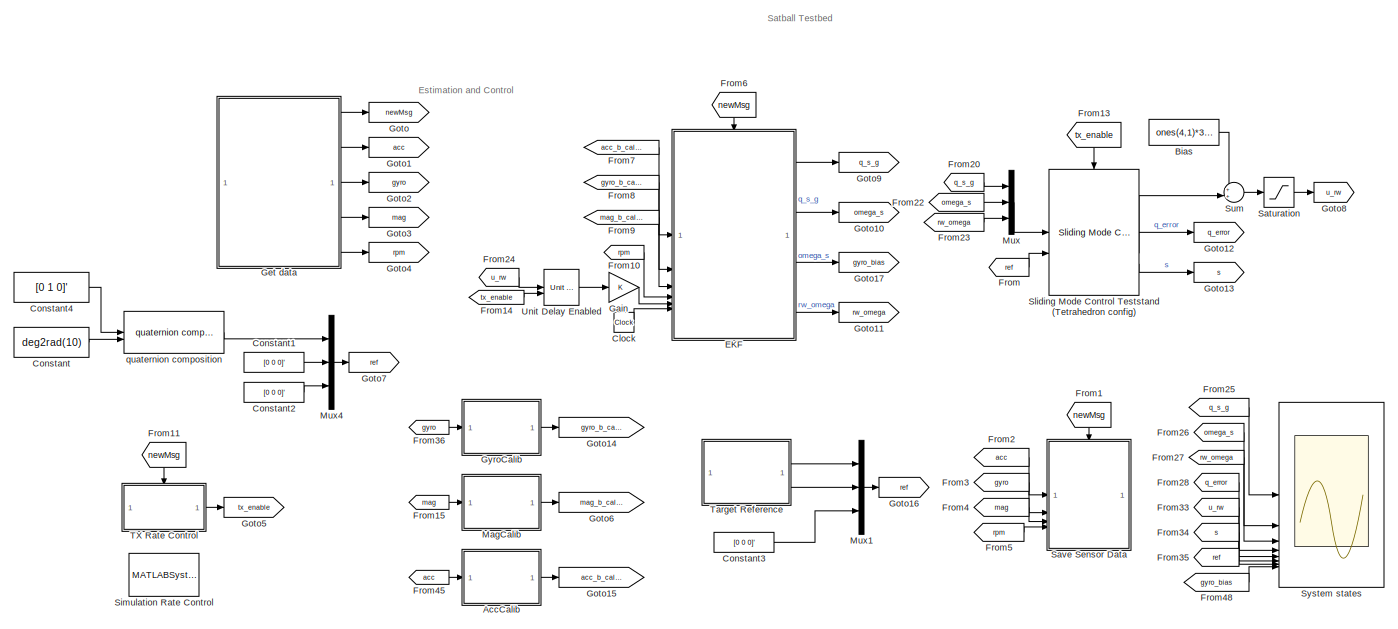
[diagram: root canvas - part 1/2, most of the canvas]
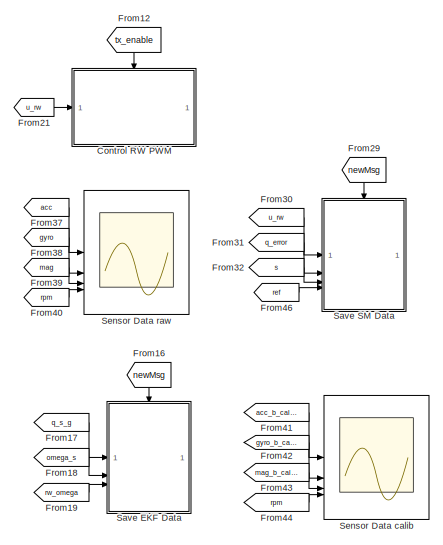
[diagram: root canvas - part 2/2, right side, full height]
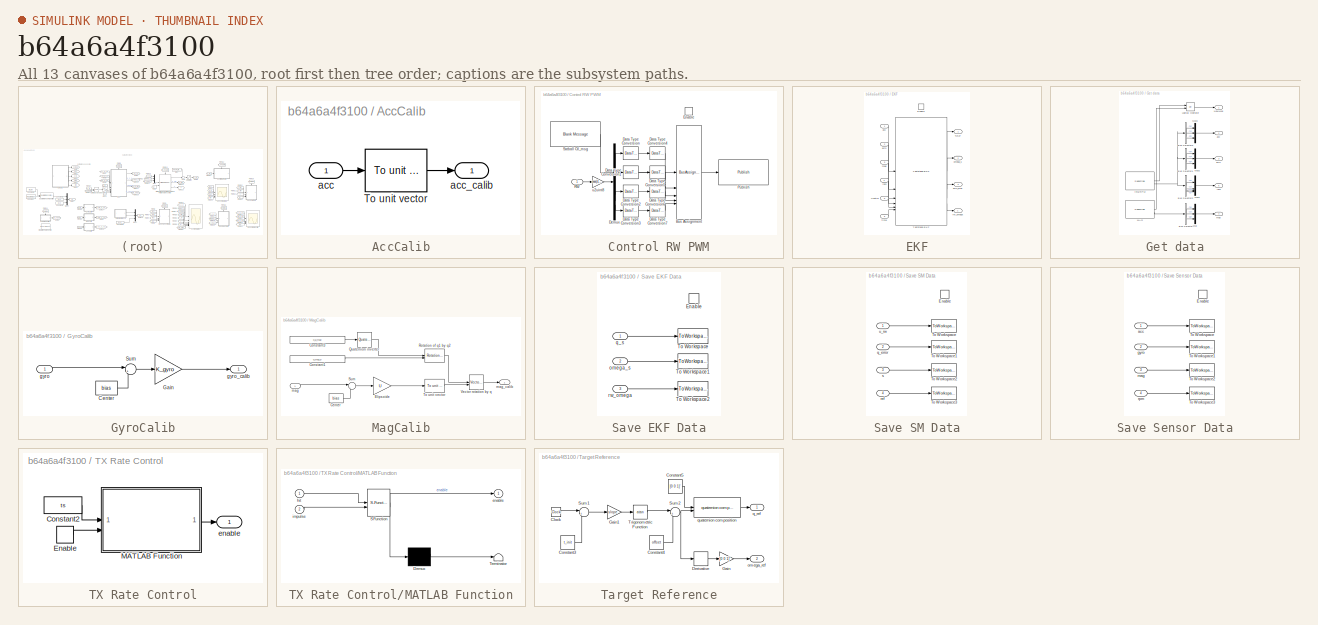
[diagram: thumbnail index - all 13 canvases of the model, root first then tree order]
MODEL slx_b64a6a4f3100
KIND model
CONFIG AbsTol = auto
CONFIG EnableMultiTasking = on
CONFIG FixedStep = 0.1
CONFIG MaxStep = auto
CONFIG MinStep = auto
CONFIG PreLoadFcn = setenv('ROS_MASTER_URI','http://localhost:11311/');\nsetenv('ROS_IP','localhost');\nrosinit('http://localhost:11311/',...\n    'NodeHost','localhost',...\n    'NodeName','/simulink_teststand');
CONFIG RelTol = 1e-3
CONFIG SampleTimeConstraint = Unconstrained
CONFIG SolverName = FixedStepDiscrete
CONFIG StartTime = 0.0
CONFIG StopTime = inf
BLOCK [SubSystem] AccCalib
BLOCK [Reference] AccCalib/To unit vector  REF=aausat3_lib/Math Utilities/Vector operations/To unit vector  (lib defined in mdl_4157f6465749, slx_d9305f96731e)
  SourceBlock = aausat3_lib/Math Utilities/Vector operations/To unit vector
  SourceProductName = AAUSAT3
  SourceType = SubSystem
BLOCK [Inport] AccCalib/acc
BLOCK [Outport] AccCalib/acc_calib
BLOCK [Constant] Bias
  Value = ones(4,1)*3.3/2
BLOCK [Clock] Clock
BLOCK [Constant] Constant
  Value = deg2rad(10)
BLOCK [Constant] Constant1
  Value = [0 0 0]'
BLOCK [Constant] Constant2
  Value = [0 0 0]'
BLOCK [Constant] Constant3
  Commented = on
  Value = [0 0 0]'
BLOCK [Constant] Constant4
  Value = [0 1 0]'
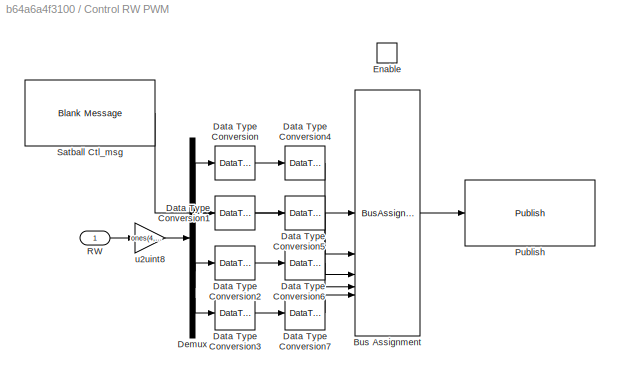
BLOCK [SubSystem] Control RW PWM
BLOCK [BusAssignment] Control RW PWM/Bus Assignment
  AssignedSignals = Quaternion.X,Quaternion.Y,Quaternion.Z,Quaternion.W
BLOCK [DataTypeConversion] Control RW PWM/Data Type Conversion
  OutDataTypeStr = uint8
  RndMeth = Floor
BLOCK [DataTypeConversion] Control RW PWM/Data Type Conversion1
  OutDataTypeStr = uint8
  RndMeth = Floor
BLOCK [DataTypeConversion] Control RW PWM/Data Type Conversion2
  OutDataTypeStr = uint8
  RndMeth = Floor
BLOCK [DataTypeConversion] Control RW PWM/Data Type Conversion3
  OutDataTypeStr = uint8
  RndMeth = Floor
BLOCK [DataTypeConversion] Control RW PWM/Data Type Conversion4
  OutDataTypeStr = double
  RndMeth = Floor
BLOCK [DataTypeConversion] Control RW PWM/Data Type Conversion5
  OutDataTypeStr = double
  RndMeth = Floor
BLOCK [DataTypeConversion] Control RW PWM/Data Type Conversion6
  OutDataTypeStr = double
  RndMeth = Floor
BLOCK [DataTypeConversion] Control RW PWM/Data Type Conversion7
  OutDataTypeStr = double
  RndMeth = Floor
BLOCK [Demux] Control RW PWM/Demux
BLOCK [EnablePort] Control RW PWM/Enable
BLOCK [Reference] Control RW PWM/Publish  REF=robotlib/Publish
  SourceBlock = robotlib/Publish
  SourceType = ROS Publish
BLOCK [Inport] Control RW PWM/RW
BLOCK [Reference] Control RW PWM/Satball Ctl_msg  REF=robotlib/Blank Message
  SourceBlock = robotlib/Blank Message
  SourceType = ROS Blank Message
BLOCK [Gain] Control RW PWM/u2uint8
  Gain = ones(4,1)*255/3.3
BLOCK [SubSystem] EKF
BLOCK [Inport] EKF/Control
  Port = 5
BLOCK [EnablePort] EKF/Enable
BLOCK [Reference] EKF/Teststand EKF  REF=aausat3_lib/ADS/Teststand EKF  (lib defined in mdl_4157f6465749, slx_d9305f96731e)
  SourceBlock = aausat3_lib/ADS/Teststand EKF
  SourceProductName = AAUSAT3
BLOCK [Inport] EKF/acc
BLOCK [Inport] EKF/gyro
  Port = 2
BLOCK [Outport] EKF/gyro_bias
  Port = 3
BLOCK [Inport] EKF/mag
  Port = 3
BLOCK [Outport] EKF/omega_s
  Port = 2
BLOCK [Outport] EKF/q_s_g
BLOCK [Inport] EKF/rpm
  Port = 4
BLOCK [Outport] EKF/rw_omega
  Port = 4
BLOCK [Inport] EKF/time
  Port = 6
BLOCK [From] From
  GotoTag = ref
BLOCK [From] From1
  GotoTag = newMsg
  NameLocation = left
BLOCK [From] From10
  GotoTag = rpm
BLOCK [From] From11
  GotoTag = newMsg
  NameLocation = left
BLOCK [From] From12
  GotoTag = tx_enable
  NameLocation = left
BLOCK [From] From13
  GotoTag = tx_enable
  NameLocation = left
BLOCK [From] From14
  GotoTag = tx_enable
BLOCK [From] From15
  GotoTag = mag
BLOCK [From] From16
  GotoTag = newMsg
  NameLocation = left
BLOCK [From] From17
  GotoTag = q_s_g
BLOCK [From] From18
  GotoTag = omega_s
BLOCK [From] From19
  GotoTag = rw_omega
BLOCK [From] From2
  GotoTag = acc
BLOCK [From] From20
  GotoTag = q_s_g
BLOCK [From] From21
  GotoTag = u_rw
BLOCK [From] From22
  GotoTag = omega_s
BLOCK [From] From23
  GotoTag = rw_omega
BLOCK [From] From24
  GotoTag = u_rw
BLOCK [From] From25
  GotoTag = q_s_g
BLOCK [From] From26
  GotoTag = omega_s
BLOCK [From] From27
  GotoTag = rw_omega
BLOCK [From] From28
  GotoTag = q_error
BLOCK [From] From29
  GotoTag = newMsg
  NameLocation = left
BLOCK [From] From3
  GotoTag = gyro
BLOCK [From] From30
  GotoTag = u_rw
BLOCK [From] From31
  GotoTag = q_error
BLOCK [From] From32
  GotoTag = s
BLOCK [From] From33
  GotoTag = u_rw
BLOCK [From] From34
  GotoTag = s
BLOCK [From] From35
  GotoTag = ref
BLOCK [From] From36
  GotoTag = gyro
BLOCK [From] From37
  GotoTag = acc
BLOCK [From] From38
  GotoTag = gyro
BLOCK [From] From39
  GotoTag = mag
BLOCK [From] From4
  GotoTag = mag
BLOCK [From] From40
  GotoTag = rpm
BLOCK [From] From41
  GotoTag = acc_b_calib
BLOCK [From] From42
  GotoTag = gyro_b_calib
BLOCK [From] From43
  GotoTag = mag_b_calib
BLOCK [From] From44
  GotoTag = rpm
BLOCK [From] From45
  GotoTag = acc
BLOCK [From] From46
  GotoTag = ref
BLOCK [From] From48
  GotoTag = gyro_bias
BLOCK [From] From5
  GotoTag = rpm
BLOCK [From] From6
  GotoTag = newMsg
  NameLocation = left
BLOCK [From] From7
  GotoTag = acc_b_calib
BLOCK [From] From8
  GotoTag = gyro_b_calib
BLOCK [From] From9
  GotoTag = mag_b_calib
BLOCK [Gain] Gain
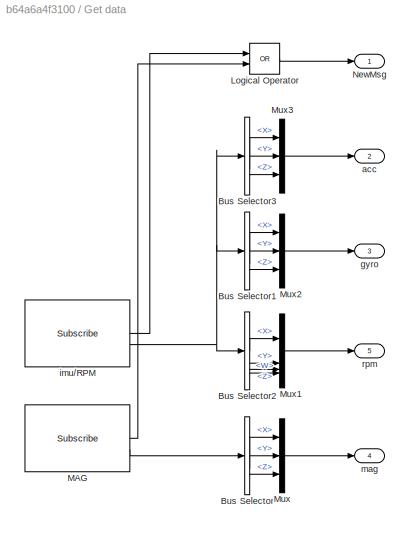
BLOCK [SubSystem] Get data
BLOCK [BusSelector] Get data/Bus Selector
  OutputSignals = MagneticField_.X,MagneticField_.Y,MagneticField_.Z
BLOCK [BusSelector] Get data/Bus Selector1
  OutputSignals = AngularVelocity.X,AngularVelocity.Y,AngularVelocity.Z
BLOCK [BusSelector] Get data/Bus Selector2
  OutputSignals = Orientation.X,Orientation.Y,Orientation.Z,Orientation.W
BLOCK [BusSelector] Get data/Bus Selector3
  OutputSignals = LinearAcceleration.X,LinearAcceleration.Y,LinearAcceleration.Z
BLOCK [Logic] Get data/Logical Operator
  AllPortsSameDT = off
  Operator = OR
  OutDataTypeStr = boolean
BLOCK [Reference] Get data/MAG  REF=robotlib/Subscribe
  SourceBlock = robotlib/Subscribe
  SourceType = ROS Subscribe
BLOCK [Mux] Get data/Mux
  DisplayOption = bar
  Inputs = 3
BLOCK [Mux] Get data/Mux1
  DisplayOption = bar
BLOCK [Mux] Get data/Mux2
  DisplayOption = bar
  Inputs = 3
BLOCK [Mux] Get data/Mux3
  DisplayOption = bar
  Inputs = 3
BLOCK [Outport] Get data/NewMsg
BLOCK [Outport] Get data/acc
  Port = 2
BLOCK [Outport] Get data/gyro
  Port = 3
BLOCK [Reference] Get data/imu//RPM  REF=robotlib/Subscribe
  SourceBlock = robotlib/Subscribe
  SourceType = ROS Subscribe
BLOCK [Outport] Get data/mag
  Port = 4
BLOCK [Outport] Get data/rpm
  Port = 5
BLOCK [Goto] Goto
  GotoTag = newMsg
BLOCK [Goto] Goto1
  GotoTag = acc
BLOCK [Goto] Goto10
  GotoTag = omega_s
BLOCK [Goto] Goto11
  GotoTag = rw_omega
BLOCK [Goto] Goto12
  GotoTag = q_error
BLOCK [Goto] Goto13
  GotoTag = s
BLOCK [Goto] Goto14
  GotoTag = gyro_b_calib
BLOCK [Goto] Goto15
  GotoTag = acc_b_calib
BLOCK [Goto] Goto16
  Commented = on
  GotoTag = ref
BLOCK [Goto] Goto17
  GotoTag = gyro_bias
BLOCK [Goto] Goto2
  GotoTag = gyro
BLOCK [Goto] Goto3
  GotoTag = mag
BLOCK [Goto] Goto4
  GotoTag = rpm
BLOCK [Goto] Goto5
  GotoTag = tx_enable
BLOCK [Goto] Goto6
  GotoTag = mag_b_calib
BLOCK [Goto] Goto7
  GotoTag = ref
BLOCK [Goto] Goto8
  GotoTag = u_rw
BLOCK [Goto] Goto9
  GotoTag = q_s_g
BLOCK [SubSystem] GyroCalib
BLOCK [Constant] GyroCalib/Center
  Value = bias
BLOCK [Gain] GyroCalib/Gain
  Gain = K_gyro
BLOCK [Sum] GyroCalib/Sum
  Inputs = |+-
BLOCK [Inport] GyroCalib/gyro
BLOCK [Outport] GyroCalib/gyro_calib
BLOCK [SubSystem] MagCalib
BLOCK [Constant] MagCalib/Center
  Value = bias
BLOCK [Constant] MagCalib/Constant1
  Value = q_mag_b
BLOCK [Constant] MagCalib/Constant3
  Value = q_g_mag
BLOCK [Gain] MagCalib/Elipsoide
  Gain = U
  Multiplication = Matrix(K*u) (u vector)
BLOCK [Reference] MagCalib/Quaternion inverter  REF=aausat3_lib/Math Utilities/Quaternion operations/Quaternion inverter  (lib defined in mdl_4157f6465749, slx_d9305f96731e)
  SourceBlock = aausat3_lib/Math Utilities/Quaternion operations/Quaternion inverter
  SourceProductName = AAUSAT3
  SourceType = SubSystem
BLOCK [Reference] MagCalib/Rotation of q1 by q2  REF=aausat3_lib/Math Utilities/Quaternion operations/Rotation of q1 by q2  (lib defined in mdl_4157f6465749, slx_d9305f96731e)
  SourceBlock = aausat3_lib/Math Utilities/Quaternion operations/Rotation of q1 by q2
  SourceProductName = AAUSAT3
  SourceType = SubSystem
BLOCK [Sum] MagCalib/Sum
  Inputs = |+-
BLOCK [Reference] MagCalib/To unit vector  REF=aausat3_lib/Math Utilities/Vector operations/To unit vector  (lib defined in mdl_4157f6465749, slx_d9305f96731e)
  SourceBlock = aausat3_lib/Math Utilities/Vector operations/To unit vector
  SourceProductName = AAUSAT3
  SourceType = SubSystem
BLOCK [Reference] MagCalib/Vector rotation by q  REF=aausat3_lib/Math Utilities/Quaternion operations/Vector rotation by q  (lib defined in mdl_4157f6465749, slx_d9305f96731e)
  SourceBlock = aausat3_lib/Math Utilities/Quaternion operations/Vector rotation by q
  SourceProductName = AAUSAT3
  SourceType = SubSystem
BLOCK [Inport] MagCalib/mag
BLOCK [Outport] MagCalib/mag_calib
BLOCK [Mux] Mux
  DisplayOption = bar
  Inputs = 3
BLOCK [Mux] Mux1
  Commented = on
  DisplayOption = bar
  Inputs = 3
BLOCK [Mux] Mux4
  DisplayOption = bar
  Inputs = 3
BLOCK [Saturate] Saturation
  LowerLimit = 0.1
  UpperLimit = 4
BLOCK [SubSystem] Save EKF Data
BLOCK [EnablePort] Save EKF Data/Enable
BLOCK [ToWorkspace] Save EKF Data/To Workspace
  FixptAsFi = on
  MaxDataPoints = inf
  SampleTime = -1
  SaveFormat = Timeseries
  VariableName = ekf_q_s
BLOCK [ToWorkspace] Save EKF Data/To Workspace1
  FixptAsFi = on
  MaxDataPoints = inf
  SampleTime = -1
  SaveFormat = Timeseries
  VariableName = ekf_omega_s
BLOCK [ToWorkspace] Save EKF Data/To Workspace2
  FixptAsFi = on
  MaxDataPoints = inf
  SampleTime = -1
  SaveFormat = Timeseries
  VariableName = ekf_omega_rw
BLOCK [Inport] Save EKF Data/omega_s
  Port = 2
BLOCK [Inport] Save EKF Data/q_s
BLOCK [Inport] Save EKF Data/rw_omega
  Port = 3
BLOCK [SubSystem] Save SM Data
BLOCK [EnablePort] Save SM Data/Enable
BLOCK [ToWorkspace] Save SM Data/To Workspace
  FixptAsFi = on
  MaxDataPoints = inf
  SampleTime = -1
  SaveFormat = Timeseries
  VariableName = sm_u_rw
BLOCK [ToWorkspace] Save SM Data/To Workspace1
  FixptAsFi = on
  MaxDataPoints = inf
  SampleTime = -1
  SaveFormat = Timeseries
  VariableName = sm_q_error
BLOCK [ToWorkspace] Save SM Data/To Workspace2
  FixptAsFi = on
  MaxDataPoints = inf
  SampleTime = -1
  SaveFormat = Timeseries
  VariableName = sm_s
BLOCK [ToWorkspace] Save SM Data/To Workspace3
  FixptAsFi = on
  MaxDataPoints = inf
  SampleTime = -1
  SaveFormat = Timeseries
  VariableName = sm_ref
BLOCK [Inport] Save SM Data/q_error
  Port = 2
BLOCK [Inport] Save SM Data/ref
  Port = 4
BLOCK [Inport] Save SM Data/s
  Port = 3
BLOCK [Inport] Save SM Data/u_rw
BLOCK [SubSystem] Save Sensor Data
BLOCK [EnablePort] Save Sensor Data/Enable
BLOCK [ToWorkspace] Save Sensor Data/To Workspace
  FixptAsFi = on
  MaxDataPoints = inf
  SampleTime = -1
  SaveFormat = Timeseries
  VariableName = sat_acc
BLOCK [ToWorkspace] Save Sensor Data/To Workspace1
  FixptAsFi = on
  MaxDataPoints = inf
  SampleTime = -1
  SaveFormat = Timeseries
  VariableName = sat_gyro
BLOCK [ToWorkspace] Save Sensor Data/To Workspace2
  FixptAsFi = on
  MaxDataPoints = inf
  SampleTime = -1
  SaveFormat = Timeseries
  VariableName = sat_mag
BLOCK [ToWorkspace] Save Sensor Data/To Workspace3
  FixptAsFi = on
  MaxDataPoints = inf
  SampleTime = -1
  SaveFormat = Timeseries
  VariableName = sat_rpm
BLOCK [Inport] Save Sensor Data/acc
BLOCK [Inport] Save Sensor Data/gyro
  Port = 2
BLOCK [Inport] Save Sensor Data/mag
  Port = 3
BLOCK [Inport] Save Sensor Data/rpm
  Port = 4
BLOCK [Scope] Sensor Data calib
  Floating = off
  NumInputPorts = 4
  ScopeSpecificationString = Simulink.scopes.TimeScopeBlockCfg('CurrentConfiguration', extmgr.ConfigurationSet(extmgr.Configuration('Core','General UI',true),extmgr.Configuration('Core','Source UI',true),extmgr.Configuration('Sources','WiredSimulink',true,'DataLoggingVariableName','ScopeData2'),extmgr.Configuration('Visuals','Time Domain',true,'SerializedDisplays',{struct('MinYLimReal','-1.19827','MaxYLimReal','1.24296','YLab...<+5237ch>
BLOCK [Scope] Sensor Data raw
  Floating = off
  NumInputPorts = 4
  ScopeSpecificationString = Simulink.scopes.TimeScopeBlockCfg('CurrentConfiguration', extmgr.ConfigurationSet(extmgr.Configuration('Core','General UI',true),extmgr.Configuration('Core','Source UI',true),extmgr.Configuration('Sources','WiredSimulink',true,'DataLoggingVariableName','ScopeData1'),extmgr.Configuration('Visuals','Time Domain',true,'SerializedDisplays',{struct('MinYLimReal','-9928.00000','MaxYLimReal','21352.00000...<+3606ch>
BLOCK [MATLABSystem] Simulation Rate Control
  MaskDisplay = disp('Rate Control');
  MaskType = ExampleHelperSimulationRateControl
  SampleTime = 0.1
  System = ExampleHelperSimulationRateControl
BLOCK [Reference] Sliding Mode Control Teststand (Tetrahedron config)  REF=aausat3_lib/ACS/Sliding Mode Control Teststand  (lib defined in mdl_4157f6465749, slx_d9305f96731e)
(Tetrahedron config)
  SourceBlock = aausat3_lib/ACS/Sliding Mode Control Teststand\n(Tetrahedron config)
  SourceProductName = AAUSAT3
BLOCK [Sum] Sum
  Inputs = ++|
BLOCK [Scope] System states
  Floating = off
  NumInputPorts = 8
  ScopeSpecificationString = Simulink.scopes.TimeScopeBlockCfg('CurrentConfiguration', extmgr.ConfigurationSet(extmgr.Configuration('Core','General UI',true),extmgr.Configuration('Core','Source UI',true),extmgr.Configuration('Sources','WiredSimulink',true),extmgr.Configuration('Visuals','Time Domain',true,'SerializedDisplays',{struct('MinYLimReal','-0.83909','MaxYLimReal','0.91487','YLabelReal','','MinYLimMag','0.00000','MaxY...<+6166ch>
BLOCK [SubSystem] TX Rate Control
BLOCK [Constant] TX Rate Control/Constant2
  Value = ts
BLOCK [EnablePort] TX Rate Control/Enable
  ShowOutputPort = on
BLOCK [SubSystem] TX Rate Control/MATLAB Function
  ErrorFcn = Stateflow.Translate.translate
  PermitHierarchicalResolution = ExplicitOnly
  SFBlockType = MATLAB Function
  TreatAsAtomicUnit = on
BLOCK [Demux] TX Rate Control/MATLAB Function/ Demux 
  Outputs = 1
BLOCK [S-Function] TX Rate Control/MATLAB Function/ SFunction 
  EnableBusSupport = on
  FunctionName = sf_sfun
  PortCounts = [2 2]
  SFcnIsStateOwnerBlock = off
  SFunctionDeploymentMode = off
  Tag = Stateflow S-Function 2
BLOCK [Terminator] TX Rate Control/MATLAB Function/ Terminator 
BLOCK [Outport] TX Rate Control/MATLAB Function/enable
BLOCK [Inport] TX Rate Control/MATLAB Function/hit
BLOCK [Inport] TX Rate Control/MATLAB Function/impulse
  Port = 2
BLOCK [Outport] TX Rate Control/enable
  OutDataTypeStr = boolean
BLOCK [SubSystem] Target Reference
  Commented = on
BLOCK [Clock] Target Reference/Clock
BLOCK [Constant] Target Reference/Constant3
  Value = t_init
BLOCK [Constant] Target Reference/Constant4
  Value = offset
BLOCK [Constant] Target Reference/Constant5
  Value = [0 0 1]'
BLOCK [Derivative] Target Reference/Derivative
BLOCK [Gain] Target Reference/Gain
  Gain = [0 0 1]'
BLOCK [Gain] Target Reference/Gain1
  Gain = slope
BLOCK [Sum] Target Reference/Sum1
  Inputs = |+-
BLOCK [Sum] Target Reference/Sum2
  Inputs = |++
BLOCK [Trigonometry] Target Reference/Trigonometric Function
  Operator = atan
BLOCK [Outport] Target Reference/omega_ref
  Port = 2
BLOCK [Outport] Target Reference/q_ref
BLOCK [Reference] Target Reference/quaternion composition  REF=aausat3_lib/Math Utilities/Quaternion operations/quaternion composition  (lib defined in mdl_4157f6465749, slx_d9305f96731e)
  SourceBlock = aausat3_lib/Math Utilities/Quaternion operations/quaternion composition
  SourceProductName = AAUSAT3
  SourceType = SubSystem
BLOCK [Reference] Unit Delay Enabled  REF=simulink_need_slupdate/Unit Delay
Enabled
  SourceBlock = simulink_need_slupdate/Unit Delay\nEnabled
  SourceType = Unit Delay Enabled
BLOCK [Reference] quaternion composition  REF=aausat3_lib/Math Utilities/Quaternion operations/quaternion composition  (lib defined in mdl_4157f6465749, slx_d9305f96731e)
  SourceBlock = aausat3_lib/Math Utilities/Quaternion operations/quaternion composition
  SourceProductName = AAUSAT3
  SourceType = SubSystem
ANNOTATION (root): Satball Testbed
ANNOTATION (root): Estimation and Control
LINE AccCalib/To unit vector:1 -> AccCalib/acc_calib:1
LINE AccCalib/acc:1 -> AccCalib/To unit vector:1
LINE AccCalib:1 -> Goto15:1
LINE Bias:1 -> Sum:1
LINE Clock:1 -> EKF:6
LINE Constant1:1 -> Mux4:2
LINE Constant2:1 -> Mux4:3
LINE Constant3:1 -> Mux1:3
LINE Constant4:1 -> quaternion composition:1
LINE Constant:1 -> quaternion composition:2
LINE Control RW PWM/Bus Assignment:1 -> Control RW PWM/Publish:1
LINE Control RW PWM/Data Type Conversion1:1 -> Control RW PWM/Data Type Conversion5:1
LINE Control RW PWM/Data Type Conversion2:1 -> Control RW PWM/Data Type Conversion6:1
LINE Control RW PWM/Data Type Conversion3:1 -> Control RW PWM/Data Type Conversion7:1
LINE Control RW PWM/Data Type Conversion4:1 -> Control RW PWM/Bus Assignment:2
LINE Control RW PWM/Data Type Conversion5:1 -> Control RW PWM/Bus Assignment:3
LINE Control RW PWM/Data Type Conversion6:1 -> Control RW PWM/Bus Assignment:4
LINE Control RW PWM/Data Type Conversion7:1 -> Control RW PWM/Bus Assignment:5
LINE Control RW PWM/Data Type Conversion:1 -> Control RW PWM/Data Type Conversion4:1
LINE Control RW PWM/Demux:1 -> Control RW PWM/Data Type Conversion:1
LINE Control RW PWM/Demux:2 -> Control RW PWM/Data Type Conversion1:1
LINE Control RW PWM/Demux:3 -> Control RW PWM/Data Type Conversion2:1
LINE Control RW PWM/Demux:4 -> Control RW PWM/Data Type Conversion3:1
LINE Control RW PWM/RW:1 -> Control RW PWM/u2uint8:1
LINE Control RW PWM/Satball Ctl_msg:1 -> Control RW PWM/Bus Assignment:1
LINE Control RW PWM/u2uint8:1 -> Control RW PWM/Demux:1
LINE EKF/Control:1 -> EKF/Teststand EKF:5
LINE EKF/Teststand EKF:1 -> EKF/q_s_g:1
LINE EKF/Teststand EKF:2 -> EKF/omega_s:1
LINE EKF/Teststand EKF:3 -> EKF/gyro_bias:1
LINE EKF/Teststand EKF:4 -> EKF/rw_omega:1
LINE EKF/acc:1 -> EKF/Teststand EKF:1
LINE EKF/gyro:1 -> EKF/Teststand EKF:2
LINE EKF/mag:1 -> EKF/Teststand EKF:3
LINE EKF/rpm:1 -> EKF/Teststand EKF:4
LINE EKF/time:1 -> EKF/Teststand EKF:6
LINE EKF:1 -> Goto9:1
LINE EKF:2 -> Goto10:1
LINE EKF:3 -> Goto17:1
LINE EKF:4 -> Goto11:1
LINE From10:1 -> EKF:4
LINE From11:1 -> TX Rate Control:enable
LINE From12:1 -> Control RW PWM:enable
LINE From13:1 -> Sliding Mode Control Teststand (Tetrahedron config):enable
LINE From14:1 -> Unit Delay Enabled:2
LINE From15:1 -> MagCalib:1
LINE From16:1 -> Save EKF Data:enable
LINE From17:1 -> Save EKF Data:1
LINE From18:1 -> Save EKF Data:2
LINE From19:1 -> Save EKF Data:3
LINE From1:1 -> Save Sensor Data:enable
LINE From20:1 -> Mux:1
LINE From21:1 -> Control RW PWM:1
LINE From22:1 -> Mux:2
LINE From23:1 -> Mux:3
LINE From24:1 -> Unit Delay Enabled:1
LINE From25:1 -> System states:1
LINE From26:1 -> System states:2
LINE From27:1 -> System states:3
LINE From28:1 -> System states:4
LINE From29:1 -> Save SM Data:enable
LINE From2:1 -> Save Sensor Data:1
LINE From30:1 -> Save SM Data:1
LINE From31:1 -> Save SM Data:2
LINE From32:1 -> Save SM Data:3
LINE From33:1 -> System states:5
LINE From34:1 -> System states:6
LINE From35:1 -> System states:7
LINE From36:1 -> GyroCalib:1
LINE From37:1 -> Sensor Data raw:1
LINE From38:1 -> Sensor Data raw:2
LINE From39:1 -> Sensor Data raw:3
LINE From3:1 -> Save Sensor Data:2
LINE From40:1 -> Sensor Data raw:4
LINE From41:1 -> Sensor Data calib:1
LINE From42:1 -> Sensor Data calib:2
LINE From43:1 -> Sensor Data calib:3
LINE From44:1 -> Sensor Data calib:4
LINE From45:1 -> AccCalib:1
LINE From46:1 -> Save SM Data:4
LINE From48:1 -> System states:8
LINE From4:1 -> Save Sensor Data:3
LINE From5:1 -> Save Sensor Data:4
LINE From6:1 -> EKF:enable
LINE From7:1 -> EKF:1
LINE From8:1 -> EKF:2
LINE From9:1 -> EKF:3
LINE From:1 -> Sliding Mode Control Teststand (Tetrahedron config):2
LINE Gain:1 -> EKF:5
LINE Get data/Bus Selector1:1 -> Get data/Mux2:1
LINE Get data/Bus Selector1:2 -> Get data/Mux2:2
LINE Get data/Bus Selector1:3 -> Get data/Mux2:3
LINE Get data/Bus Selector2:1 -> Get data/Mux1:1
LINE Get data/Bus Selector2:2 -> Get data/Mux1:2
LINE Get data/Bus Selector2:3 -> Get data/Mux1:3
LINE Get data/Bus Selector2:4 -> Get data/Mux1:4
LINE Get data/Bus Selector3:1 -> Get data/Mux3:1
LINE Get data/Bus Selector3:2 -> Get data/Mux3:2
LINE Get data/Bus Selector3:3 -> Get data/Mux3:3
LINE Get data/Bus Selector:1 -> Get data/Mux:1
LINE Get data/Bus Selector:2 -> Get data/Mux:2
LINE Get data/Bus Selector:3 -> Get data/Mux:3
LINE Get data/Logical Operator:1 -> Get data/NewMsg:1
LINE Get data/MAG:1 -> Get data/Logical Operator:2
LINE Get data/MAG:2 -> Get data/Bus Selector:1
LINE Get data/Mux1:1 -> Get data/rpm:1
LINE Get data/Mux2:1 -> Get data/gyro:1
LINE Get data/Mux3:1 -> Get data/acc:1
LINE Get data/Mux:1 -> Get data/mag:1
LINE Get data/imu//RPM:1 -> Get data/Logical Operator:1
NET Get data/imu//RPM:2 -> Get data/Bus Selector1:1, Get data/Bus Selector2:1, Get data/Bus Selector3:1
LINE Get data:1 -> Goto:1
LINE Get data:2 -> Goto1:1
LINE Get data:3 -> Goto2:1
LINE Get data:4 -> Goto3:1
LINE Get data:5 -> Goto4:1
LINE GyroCalib/Center:1 -> GyroCalib/Sum:2
LINE GyroCalib/Gain:1 -> GyroCalib/gyro_calib:1
LINE GyroCalib/Sum:1 -> GyroCalib/Gain:1
LINE GyroCalib/gyro:1 -> GyroCalib/Sum:1
LINE GyroCalib:1 -> Goto14:1
LINE MagCalib/Center:1 -> MagCalib/Sum:2
LINE MagCalib/Constant1:1 -> MagCalib/Rotation of q1 by q2:2
LINE MagCalib/Constant3:1 -> MagCalib/Quaternion inverter:1
LINE MagCalib/Elipsoide:1 -> MagCalib/To unit vector:1
LINE MagCalib/Quaternion inverter:1 -> MagCalib/Rotation of q1 by q2:1
LINE MagCalib/Rotation of q1 by q2:1 -> MagCalib/Vector rotation by q:1
LINE MagCalib/Sum:1 -> MagCalib/Elipsoide:1
LINE MagCalib/To unit vector:1 -> MagCalib/Vector rotation by q:2
LINE MagCalib/Vector rotation by q:1 -> MagCalib/mag_calib:1
LINE MagCalib/mag:1 -> MagCalib/Sum:1
LINE MagCalib:1 -> Goto6:1
LINE Mux1:1 -> Goto16:1
LINE Mux4:1 -> Goto7:1
LINE Mux:1 -> Sliding Mode Control Teststand (Tetrahedron config):1
LINE Saturation:1 -> Goto8:1
LINE Save EKF Data/omega_s:1 -> Save EKF Data/To Workspace1:1
LINE Save EKF Data/q_s:1 -> Save EKF Data/To Workspace:1
LINE Save EKF Data/rw_omega:1 -> Save EKF Data/To Workspace2:1
LINE Save SM Data/q_error:1 -> Save SM Data/To Workspace1:1
LINE Save SM Data/ref:1 -> Save SM Data/To Workspace3:1
LINE Save SM Data/s:1 -> Save SM Data/To Workspace2:1
LINE Save SM Data/u_rw:1 -> Save SM Data/To Workspace:1
LINE Save Sensor Data/acc:1 -> Save Sensor Data/To Workspace:1
LINE Save Sensor Data/gyro:1 -> Save Sensor Data/To Workspace1:1
LINE Save Sensor Data/mag:1 -> Save Sensor Data/To Workspace2:1
LINE Save Sensor Data/rpm:1 -> Save Sensor Data/To Workspace3:1
LINE Sliding Mode Control Teststand (Tetrahedron config):1 -> Sum:2
LINE Sliding Mode Control Teststand (Tetrahedron config):2 -> Goto12:1
LINE Sliding Mode Control Teststand (Tetrahedron config):3 -> Goto13:1
LINE Sum:1 -> Saturation:1
LINE TX Rate Control/Constant2:1 -> TX Rate Control/MATLAB Function:1
LINE TX Rate Control/Enable:1 -> TX Rate Control/MATLAB Function:2
LINE TX Rate Control/MATLAB Function:1 -> TX Rate Control/enable:1
LINE TX Rate Control:1 -> Goto5:1
LINE Target Reference/Clock:1 -> Target Reference/Sum1:1
LINE Target Reference/Constant3:1 -> Target Reference/Sum1:2
LINE Target Reference/Constant4:1 -> Target Reference/Sum2:2
LINE Target Reference/Constant5:1 -> Target Reference/quaternion composition:1
LINE Target Reference/Derivative:1 -> Target Reference/Gain:1
LINE Target Reference/Gain1:1 -> Target Reference/Trigonometric Function:1
LINE Target Reference/Gain:1 -> Target Reference/omega_ref:1
LINE Target Reference/Sum1:1 -> Target Reference/Gain1:1
NET Target Reference/Sum2:1 -> Target Reference/Derivative:1, Target Reference/quaternion composition:2
LINE Target Reference/Trigonometric Function:1 -> Target Reference/Sum2:1
LINE Target Reference/quaternion composition:1 -> Target Reference/q_ref:1
LINE Target Reference:1 -> Mux1:1
LINE Target Reference:2 -> Mux1:2
LINE Unit Delay Enabled:1 -> Gain:1
LINE quaternion composition:1 -> Mux4:1
note: NET lines group one-source signal fan-out (src -> all destinations, sorted); 1:1 wires keep LINE
CHART TX Rate Control/MATLAB Function states=1 transitions=1
  STATE_LABEL 'eML_blk_kernel()'
  STATE_LABEL 'SCRIPT:\nfunction enable = tx_enable(hit,impulse)\n\nenable = tx_counter(hit,impulse);'
CHART  states=0 transitions=0
